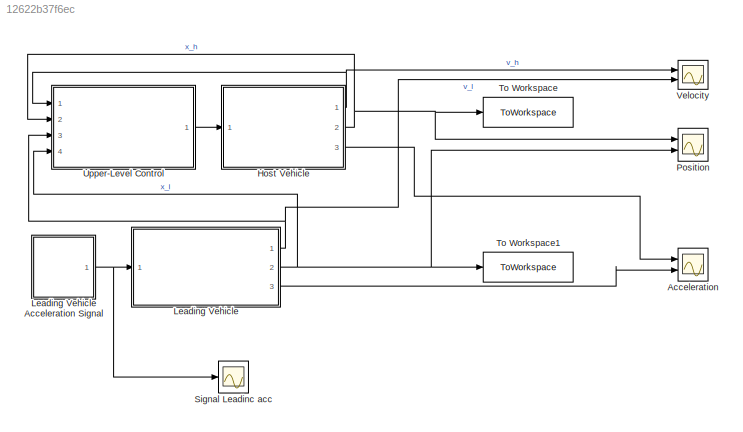
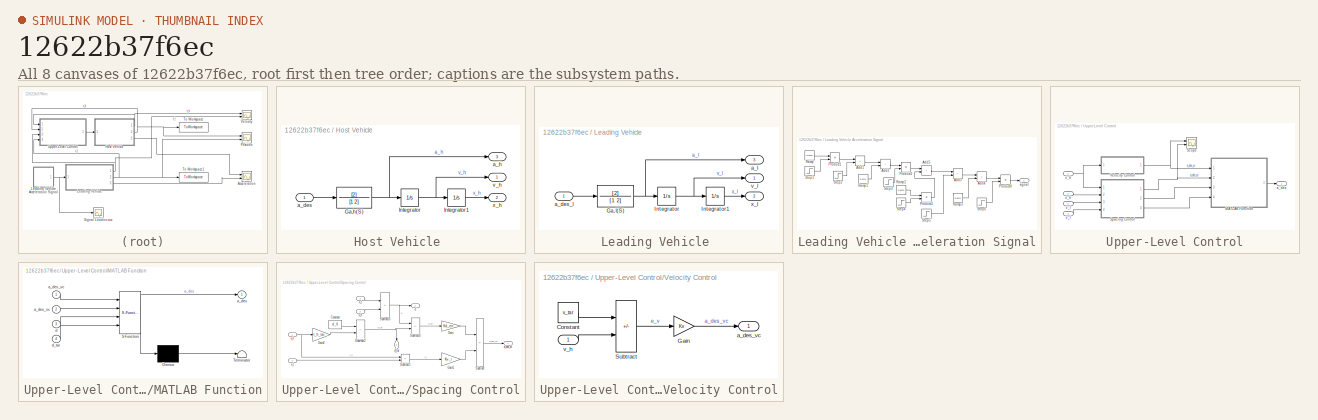
[diagram: thumbnail index - all 8 canvases of the model, root first then tree order]
MODEL slx_12622b37f6ec
KIND model
CONFIG AbsTol = auto
CONFIG EnableMultiTasking = off
CONFIG FixedStep = auto
CONFIG MaxStep = auto
CONFIG MinStep = auto
CONFIG RelTol = 1e-3
CONFIG SampleTimeConstraint = Unconstrained
CONFIG SolverName = VariableStepAuto
CONFIG StartTime = 0.0
CONFIG StopTime = 60.0
WORKSPACE source: external: MAT-File  (data not in archive)
BLOCK [Scope] Acceleration
  Floating = off
  NumInputPorts = 2
  Ports = [2]
  ScopeSpecificationString = Simulink.scopes.TimeScopeBlockCfg('CurrentConfiguration', extmgr.ConfigurationSet(extmgr.Configuration('Core','General UI',true),extmgr.Configuration('Core','Source UI',true),extmgr.Configuration('Sources','WiredSimulink',true,'DataLoggingVariableName','ScopeData2'),extmgr.Configuration('Visuals','Time Domain',true,'SerializedDisplays',{struct('MinYLimReal','-2.61435','MaxYLimReal','3.56052','YLab...<+1679ch>
BLOCK [SubSystem] Host Vehicle 
  Ports = [1, 3]
  RequestExecContextInheritance = off
  Tag = host vehicle
BLOCK [TransferFcn] Host Vehicle /Ga,h(S)
  Denominator = [1 2]
  Numerator = [2]
BLOCK [Integrator] Host Vehicle /Integrator
  InitialCondition = v_h
  Ports = [1, 1]
BLOCK [Integrator] Host Vehicle /Integrator1
  InitialCondition = x_h
  Ports = [1, 1]
BLOCK [Inport] Host Vehicle /a_des
BLOCK [Outport] Host Vehicle /a_h
  Port = 3
BLOCK [Outport] Host Vehicle /v_h
BLOCK [Outport] Host Vehicle /x_h 
  Port = 2
BLOCK [SubSystem] Leading Vehicle 
  Ports = [1, 3]
  RequestExecContextInheritance = off
BLOCK [TransferFcn] Leading Vehicle /Ga,l(S)
  Denominator = [1 2]
  Numerator = [2]
BLOCK [Integrator] Leading Vehicle /Integrator
  InitialCondition = v_l
  Ports = [1, 1]
BLOCK [Integrator] Leading Vehicle /Integrator1
  InitialCondition = x_l
  Ports = [1, 1]
BLOCK [Inport] Leading Vehicle /a_des_l
BLOCK [Outport] Leading Vehicle /a_l
  Port = 3
BLOCK [Outport] Leading Vehicle /v_l
BLOCK [Outport] Leading Vehicle /x_l
  Port = 2
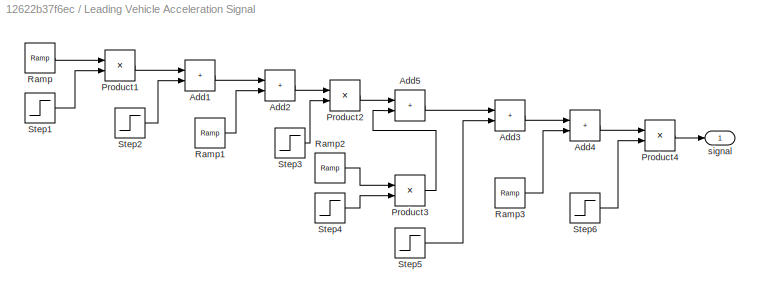
BLOCK [SubSystem] Leading Vehicle Acceleration Signal
  Ports = [0, 1]
  RequestExecContextInheritance = off
BLOCK [Sum] Leading Vehicle Acceleration Signal/Add1
  IconShape = rectangular
  Ports = [2, 1]
BLOCK [Sum] Leading Vehicle Acceleration Signal/Add2
  IconShape = rectangular
  Ports = [2, 1]
BLOCK [Sum] Leading Vehicle Acceleration Signal/Add3
  IconShape = rectangular
  Ports = [2, 1]
BLOCK [Sum] Leading Vehicle Acceleration Signal/Add4
  IconShape = rectangular
  Ports = [2, 1]
BLOCK [Sum] Leading Vehicle Acceleration Signal/Add5
  IconShape = rectangular
  Ports = [2, 1]
BLOCK [Product] Leading Vehicle Acceleration Signal/Product1
  Ports = [2, 1]
BLOCK [Product] Leading Vehicle Acceleration Signal/Product2
  Ports = [2, 1]
BLOCK [Product] Leading Vehicle Acceleration Signal/Product3
  Ports = [2, 1]
BLOCK [Product] Leading Vehicle Acceleration Signal/Product4
  Ports = [2, 1]
BLOCK [Reference] Leading Vehicle Acceleration Signal/Ramp  REF=simulink/Sources/Ramp
  Ports = [0, 1]
  SourceBlock = simulink/Sources/Ramp
  SourceProductBaseCode = SL
  SourceType = Ramp
BLOCK [Reference] Leading Vehicle Acceleration Signal/Ramp1  REF=simulink/Sources/Ramp
  Ports = [0, 1]
  SourceBlock = simulink/Sources/Ramp
  SourceProductBaseCode = SL
  SourceType = Ramp
BLOCK [Reference] Leading Vehicle Acceleration Signal/Ramp2  REF=simulink/Sources/Ramp
  Ports = [0, 1]
  SourceBlock = simulink/Sources/Ramp
  SourceProductBaseCode = SL
  SourceType = Ramp
BLOCK [Reference] Leading Vehicle Acceleration Signal/Ramp3  REF=simulink/Sources/Ramp
  Ports = [0, 1]
  SourceBlock = simulink/Sources/Ramp
  SourceProductBaseCode = SL
  SourceType = Ramp
BLOCK [Step] Leading Vehicle Acceleration Signal/Step1
  After = 0
  Before = 1
  SampleTime = 0.1
  Time = 10.5
BLOCK [Step] Leading Vehicle Acceleration Signal/Step2
  After = -2
  SampleTime = 0
  Time = 10.5
BLOCK [Step] Leading Vehicle Acceleration Signal/Step3
  After = 0
  Before = 1
  SampleTime = 0
  Time = 14
BLOCK [Step] Leading Vehicle Acceleration Signal/Step4
  After = 0
  Before = 1
  SampleTime = 0
  Time = 40.5
BLOCK [Step] Leading Vehicle Acceleration Signal/Step5
  After = 2
  SampleTime = 0
  Time = 40.5
BLOCK [Step] Leading Vehicle Acceleration Signal/Step6
  After = 0
  Before = 1
  SampleTime = 0
  Time = 44
BLOCK [Outport] Leading Vehicle Acceleration Signal/signal
BLOCK [Scope] Position
  Floating = off
  NumInputPorts = 2
  Ports = [2]
  ScopeSpecificationString = Simulink.scopes.TimeScopeBlockCfg('CurrentConfiguration', extmgr.ConfigurationSet(extmgr.Configuration('Core','General UI',true),extmgr.Configuration('Core','Source UI',true),extmgr.Configuration('Sources','WiredSimulink',true,'DataLoggingVariableName','ScopeData1'),extmgr.Configuration('Visuals','Time Domain',true,'SerializedDisplays',{struct('MinYLimReal','0.00000','MaxYLimReal','1970.00000','YL...<+1710ch>
BLOCK [Scope] Signal Leadinc acc
  Floating = off
  NumInputPorts = 1
  Ports = [1]
  ScopeSpecificationString = Simulink.scopes.TimeScopeBlockCfg('CurrentConfiguration', extmgr.ConfigurationSet(extmgr.Configuration('Core','General UI',true),extmgr.Configuration('Core','Source UI',true),extmgr.Configuration('Sources','WiredSimulink',true,'DataLoggingVariableName','ScopeData2'),extmgr.Configuration('Visuals','Time Domain',true,'SerializedDisplays',{struct('MinYLimReal','-1.00000','MaxYLimReal','1.00000','YLab...<+1403ch>
BLOCK [ToWorkspace] To Workspace
  FixptAsFi = on
  MaxDataPoints = inf
  Ports = [1]
  SampleTime = -1
  VariableName = x_h
BLOCK [ToWorkspace] To Workspace1
  FixptAsFi = on
  MaxDataPoints = inf
  Ports = [1]
  SampleTime = -1
  VariableName = x_l
BLOCK [SubSystem] Upper-Level Control
  Ports = [4, 1]
  RequestExecContextInheritance = off
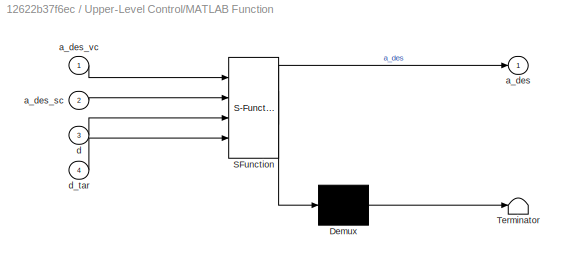
BLOCK [SubSystem] Upper-Level Control/MATLAB Function
  ErrorFcn = Stateflow.Translate.translate
  PermitHierarchicalResolution = ExplicitOnly
  Ports = [4, 1]
  RequestExecContextInheritance = off
  SFBlockType = MATLAB Function
  TreatAsAtomicUnit = on
BLOCK [Demux] Upper-Level Control/MATLAB Function/ Demux 
  Outputs = 1
  Ports = [1, 1]
BLOCK [S-Function] Upper-Level Control/MATLAB Function/ SFunction 
  EnableBusSupport = on
  FunctionName = sf_sfun
  PortCounts = [4 2]
  Ports = [4, 2]
  SFcnIsStateOwnerBlock = off
  SFunctionDeploymentMode = off
  Tag = Stateflow S-Function 1
BLOCK [Terminator] Upper-Level Control/MATLAB Function/ Terminator 
BLOCK [Outport] Upper-Level Control/MATLAB Function/a_des
BLOCK [Inport] Upper-Level Control/MATLAB Function/a_des_sc
  Port = 2
BLOCK [Inport] Upper-Level Control/MATLAB Function/a_des_vc
BLOCK [Inport] Upper-Level Control/MATLAB Function/d
  Port = 3
BLOCK [Inport] Upper-Level Control/MATLAB Function/d_tar
  Port = 4
BLOCK [Scope] Upper-Level Control/Scope
  Floating = off
  NumInputPorts = 2
  Ports = [2]
  ScopeSpecificationString = Simulink.scopes.TimeScopeBlockCfg('CurrentConfiguration', extmgr.ConfigurationSet(extmgr.Configuration('Core','General UI',true),extmgr.Configuration('Core','Source UI',true),extmgr.Configuration('Sources','WiredSimulink',true,'DataLoggingVariableName','ScopeData1'),extmgr.Configuration('Visuals','Time Domain',true,'SerializedDisplays',{struct('MinYLimReal','-2.88952','MaxYLimReal','7.3665','YLabe...<+1404ch>
BLOCK [SubSystem] Upper-Level Control/Spacing Control
  Ports = [4, 3]
  RequestExecContextInheritance = off
BLOCK [Constant] Upper-Level Control/Spacing Control/Constant
  Value = d_0
BLOCK [Gain] Upper-Level Control/Spacing Control/Gain
  Gain = Kd_err
BLOCK [Gain] Upper-Level Control/Spacing Control/Gain1
  Gain = Kv_r
BLOCK [Gain] Upper-Level Control/Spacing Control/Gain2
  Gain = t_h_tar
BLOCK [Sum] Upper-Level Control/Spacing Control/Subtract
  IconShape = rectangular
  Inputs = -+
  Ports = [2, 1]
BLOCK [Sum] Upper-Level Control/Spacing Control/Subtract1
  IconShape = rectangular
  Inputs = -+
  Ports = [2, 1]
BLOCK [Sum] Upper-Level Control/Spacing Control/Subtract2
  IconShape = rectangular
  Ports = [2, 1]
BLOCK [Sum] Upper-Level Control/Spacing Control/Subtract3
  IconShape = rectangular
  Inputs = +-
  Ports = [2, 1]
BLOCK [Sum] Upper-Level Control/Spacing Control/Subtract4
  IconShape = rectangular
  Inputs = -+
  Ports = [2, 1]
BLOCK [Outport] Upper-Level Control/Spacing Control/a_des_sc
BLOCK [Outport] Upper-Level Control/Spacing Control/d
  Port = 2
BLOCK [Outport] Upper-Level Control/Spacing Control/d_tar
  NameLocation = left
  Port = 3
BLOCK [Inport] Upper-Level Control/Spacing Control/v_h
BLOCK [Inport] Upper-Level Control/Spacing Control/v_l
  Port = 4
BLOCK [Inport] Upper-Level Control/Spacing Control/x_h
  Port = 2
BLOCK [Inport] Upper-Level Control/Spacing Control/x_l
  Port = 3
BLOCK [SubSystem] Upper-Level Control/Velocity Control
  Ports = [1, 1]
  RequestExecContextInheritance = off
BLOCK [Constant] Upper-Level Control/Velocity Control/Constant
  Value = v_tar
BLOCK [Gain] Upper-Level Control/Velocity Control/Gain
  Gain = Kv
BLOCK [Sum] Upper-Level Control/Velocity Control/Subtract
  IconShape = rectangular
  Inputs = +-
  Ports = [2, 1]
BLOCK [Outport] Upper-Level Control/Velocity Control/a_des_vc
BLOCK [Inport] Upper-Level Control/Velocity Control/v_h
BLOCK [Outport] Upper-Level Control/a_des
BLOCK [Inport] Upper-Level Control/v_h
BLOCK [Inport] Upper-Level Control/v_l
  Port = 3
BLOCK [Inport] Upper-Level Control/x_h
  Port = 2
BLOCK [Inport] Upper-Level Control/x_l
  Port = 4
BLOCK [Scope] Velocity
  Floating = off
  NumInputPorts = 2
  Ports = [2]
  ScopeSpecificationString = Simulink.scopes.TimeScopeBlockCfg('CurrentConfiguration', extmgr.ConfigurationSet(extmgr.Configuration('Core','General UI',true),extmgr.Configuration('Core','Source UI',true),extmgr.Configuration('Sources','WiredSimulink',true,'DataLoggingVariableName','ScopeData1'),extmgr.Configuration('Visuals','Time Domain',true,'SerializedDisplays',{struct('MinYLimReal','27.00000','MaxYLimReal','37.00000','YLa...<+1655ch>
NET Host Vehicle /Ga,h(S):1 -> Host Vehicle /Integrator:1, Host Vehicle /a_h:1
LINE Host Vehicle /Integrator1:1 -> Host Vehicle /x_h :1
NET Host Vehicle /Integrator:1 -> Host Vehicle /Integrator1:1, Host Vehicle /v_h:1
LINE Host Vehicle /a_des:1 -> Host Vehicle /Ga,h(S):1
NET Host Vehicle :1 -> Upper-Level Control:1, Velocity:1
NET Host Vehicle :2 -> Position:1, To Workspace:1, Upper-Level Control:2
LINE Host Vehicle :3 -> Acceleration:1
NET Leading Vehicle /Ga,l(S):1 -> Leading Vehicle /Integrator:1, Leading Vehicle /a_l:1
LINE Leading Vehicle /Integrator1:1 -> Leading Vehicle /x_l:1
NET Leading Vehicle /Integrator:1 -> Leading Vehicle /Integrator1:1, Leading Vehicle /v_l:1
LINE Leading Vehicle /a_des_l:1 -> Leading Vehicle /Ga,l(S):1
NET Leading Vehicle :1 -> Upper-Level Control:3, Velocity:2
NET Leading Vehicle :2 -> Position:2, To Workspace1:1, Upper-Level Control:4
LINE Leading Vehicle :3 -> Acceleration:2
LINE Leading Vehicle Acceleration Signal/Add1:1 -> Leading Vehicle Acceleration Signal/Add2:1
LINE Leading Vehicle Acceleration Signal/Add2:1 -> Leading Vehicle Acceleration Signal/Product2:1
LINE Leading Vehicle Acceleration Signal/Add3:1 -> Leading Vehicle Acceleration Signal/Add4:1
LINE Leading Vehicle Acceleration Signal/Add4:1 -> Leading Vehicle Acceleration Signal/Product4:1
LINE Leading Vehicle Acceleration Signal/Add5:1 -> Leading Vehicle Acceleration Signal/Add3:1
LINE Leading Vehicle Acceleration Signal/Product1:1 -> Leading Vehicle Acceleration Signal/Add1:1
LINE Leading Vehicle Acceleration Signal/Product2:1 -> Leading Vehicle Acceleration Signal/Add5:1
LINE Leading Vehicle Acceleration Signal/Product3:1 -> Leading Vehicle Acceleration Signal/Add5:2
LINE Leading Vehicle Acceleration Signal/Product4:1 -> Leading Vehicle Acceleration Signal/signal:1
LINE Leading Vehicle Acceleration Signal/Ramp1:1 -> Leading Vehicle Acceleration Signal/Add2:2
LINE Leading Vehicle Acceleration Signal/Ramp2:1 -> Leading Vehicle Acceleration Signal/Product3:1
LINE Leading Vehicle Acceleration Signal/Ramp3:1 -> Leading Vehicle Acceleration Signal/Add4:2
LINE Leading Vehicle Acceleration Signal/Ramp:1 -> Leading Vehicle Acceleration Signal/Product1:1
LINE Leading Vehicle Acceleration Signal/Step1:1 -> Leading Vehicle Acceleration Signal/Product1:2
LINE Leading Vehicle Acceleration Signal/Step2:1 -> Leading Vehicle Acceleration Signal/Add1:2
LINE Leading Vehicle Acceleration Signal/Step3:1 -> Leading Vehicle Acceleration Signal/Product2:2
LINE Leading Vehicle Acceleration Signal/Step4:1 -> Leading Vehicle Acceleration Signal/Product3:2
LINE Leading Vehicle Acceleration Signal/Step5:1 -> Leading Vehicle Acceleration Signal/Add3:2
LINE Leading Vehicle Acceleration Signal/Step6:1 -> Leading Vehicle Acceleration Signal/Product4:2
NET Leading Vehicle Acceleration Signal:1 -> Leading Vehicle :1, Signal Leadinc acc:1
LINE Upper-Level Control/MATLAB Function:1 -> Upper-Level Control/a_des:1
LINE Upper-Level Control/Spacing Control/Constant:1 -> Upper-Level Control/Spacing Control/Subtract2:1
LINE Upper-Level Control/Spacing Control/Gain1:1 -> Upper-Level Control/Spacing Control/Subtract:2
LINE Upper-Level Control/Spacing Control/Gain2:1 -> Upper-Level Control/Spacing Control/Subtract2:2
LINE Upper-Level Control/Spacing Control/Gain:1 -> Upper-Level Control/Spacing Control/Subtract:1
LINE Upper-Level Control/Spacing Control/Subtract1:1 -> Upper-Level Control/Spacing Control/Gain1:1
NET Upper-Level Control/Spacing Control/Subtract2:1 -> Upper-Level Control/Spacing Control/Subtract4:2, Upper-Level Control/Spacing Control/d_tar:1
NET Upper-Level Control/Spacing Control/Subtract3:1 -> Upper-Level Control/Spacing Control/Subtract4:1, Upper-Level Control/Spacing Control/d:1
LINE Upper-Level Control/Spacing Control/Subtract4:1 -> Upper-Level Control/Spacing Control/Gain:1
LINE Upper-Level Control/Spacing Control/Subtract:1 -> Upper-Level Control/Spacing Control/a_des_sc:1
NET Upper-Level Control/Spacing Control/v_h:1 -> Upper-Level Control/Spacing Control/Gain2:1, Upper-Level Control/Spacing Control/Subtract1:1
LINE Upper-Level Control/Spacing Control/v_l:1 -> Upper-Level Control/Spacing Control/Subtract1:2
LINE Upper-Level Control/Spacing Control/x_h:1 -> Upper-Level Control/Spacing Control/Subtract3:2
LINE Upper-Level Control/Spacing Control/x_l:1 -> Upper-Level Control/Spacing Control/Subtract3:1
NET Upper-Level Control/Spacing Control:1 -> Upper-Level Control/MATLAB Function:2, Upper-Level Control/Scope:2
LINE Upper-Level Control/Spacing Control:2 -> Upper-Level Control/MATLAB Function:3
LINE Upper-Level Control/Spacing Control:3 -> Upper-Level Control/MATLAB Function:4
LINE Upper-Level Control/Velocity Control/Constant:1 -> Upper-Level Control/Velocity Control/Subtract:1
LINE Upper-Level Control/Velocity Control/Gain:1 -> Upper-Level Control/Velocity Control/a_des_vc:1
LINE Upper-Level Control/Velocity Control/Subtract:1 -> Upper-Level Control/Velocity Control/Gain:1
LINE Upper-Level Control/Velocity Control/v_h:1 -> Upper-Level Control/Velocity Control/Subtract:2
NET Upper-Level Control/Velocity Control:1 -> Upper-Level Control/MATLAB Function:1, Upper-Level Control/Scope:1
NET Upper-Level Control/v_h:1 -> Upper-Level Control/Spacing Control:1, Upper-Level Control/Velocity Control:1
LINE Upper-Level Control/v_l:1 -> Upper-Level Control/Spacing Control:4
LINE Upper-Level Control/x_h:1 -> Upper-Level Control/Spacing Control:2
LINE Upper-Level Control/x_l:1 -> Upper-Level Control/Spacing Control:3
LINE Upper-Level Control:1 -> Host Vehicle :1
note: NET lines group one-source signal fan-out (src -> all destinations, sorted); 1:1 wires keep LINE
CHART Upper-Level Control/MATLAB Function states=1 transitions=1
  STATE_LABEL 'eML_blk_kernel()'
  STATE_LABEL 'SCRIPT:\nfunction a_des = switching_logic(a_des_vc, a_des_sc, d, d_tar)\n\nif d > d_tar\n    a_des = min([a_des_vc a_des_sc]);\nelse\n    a_des = a_des_sc;\nend\n\nif a_des > 5 \n    a_des = 5;\nend\n\nif a_des < -3\n    a_des = -3;\nend\n\n\nend\n'
CHART  states=0 transitions=0
